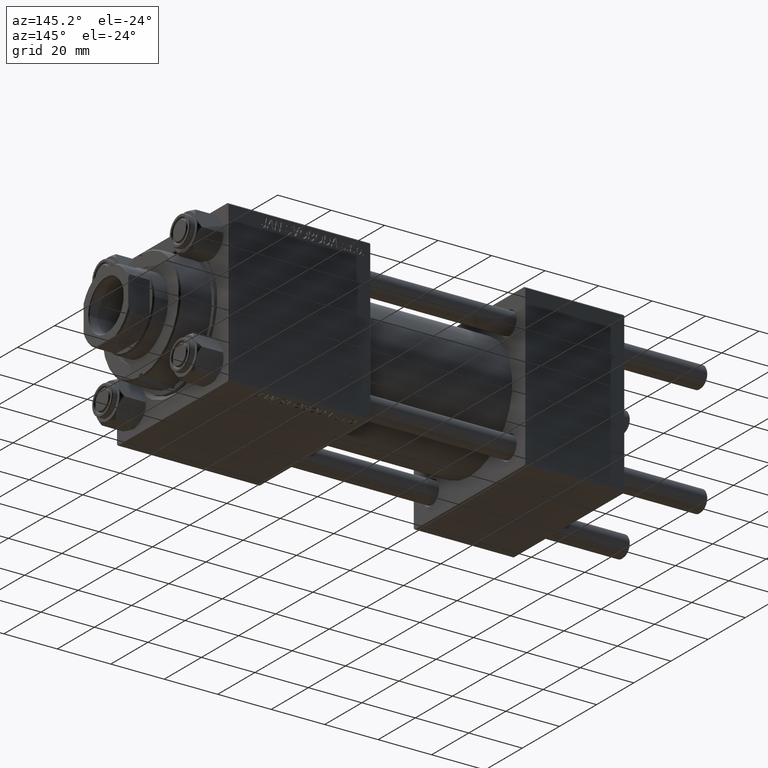
[diagram: clean part render]
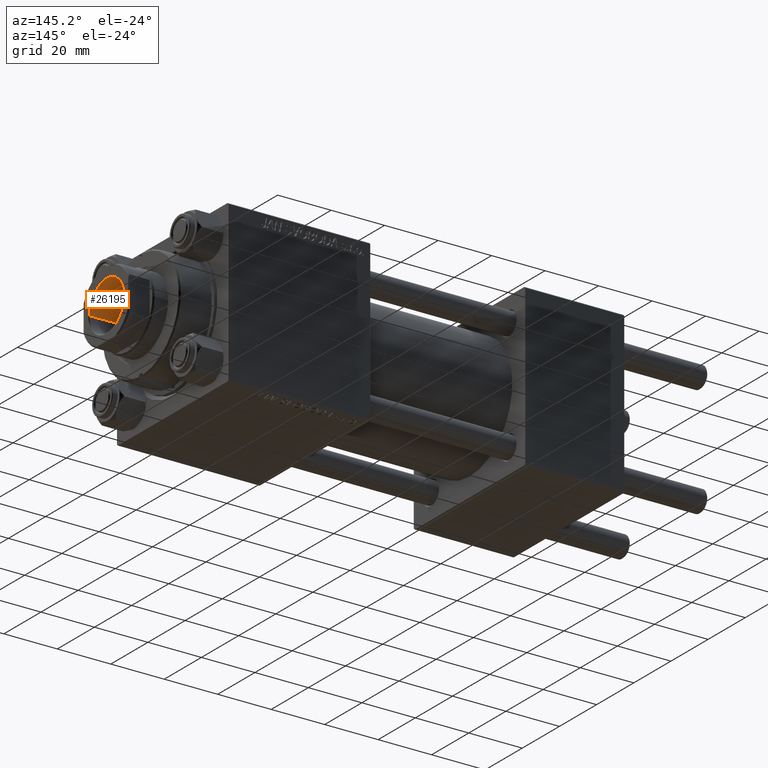
[diagram: same view with one face highlighted and labeled with its STEP entity id]
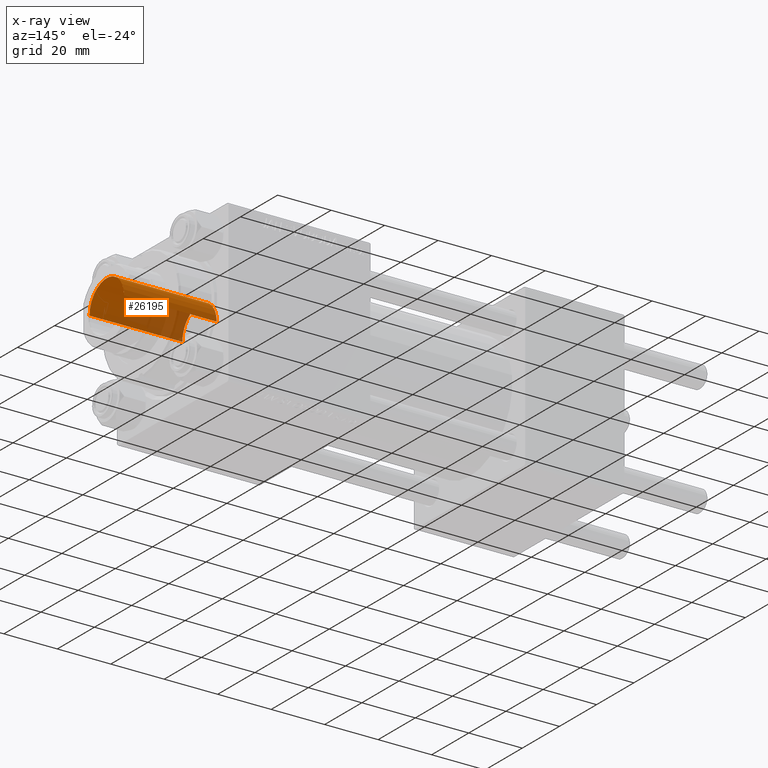
[diagram: x-ray of the same camera — body ghosted, the highlighted face saturated]
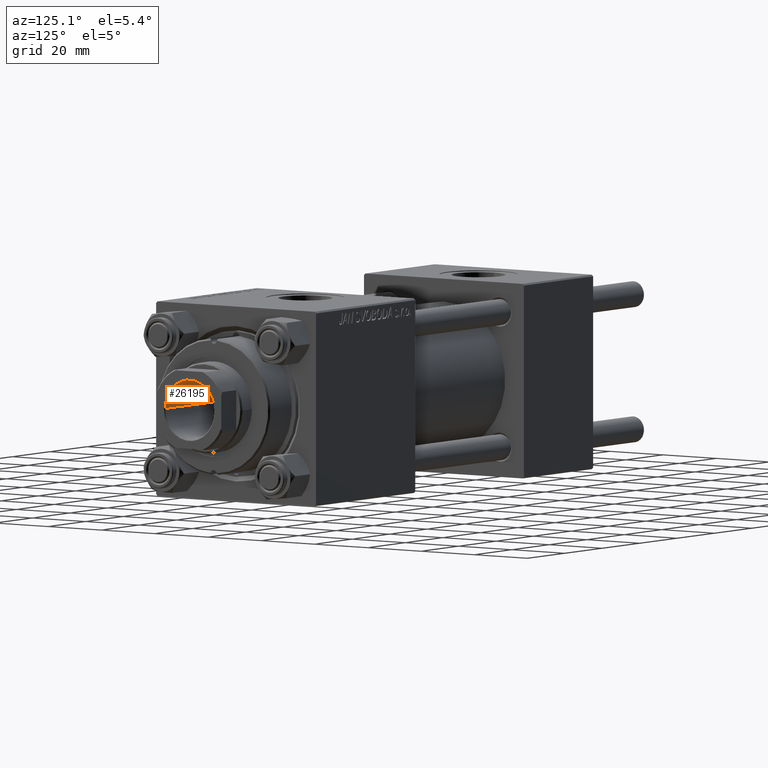
[diagram: same view with one face highlighted and labeled with its STEP entity id]
A machine part, auxiliary view. The second image highlights one B-rep face of the part: STEP entity #26195.
The next image is the same camera in x-ray: the body ghosted, the highlighted face saturated — about 28% of this face is hidden behind the body in this view.
A second angle (auxiliary view) of the same face is appended — the face is thin or edge-on in the first view.
In plain terms, the highlighted cylindrical surface (edge-blend (fillet) strip) has radius 9.25 mm, axis along (1, 0, -0).
Its self-contained STEP definition (entity closure, byte-faithful):
#2062 = DIRECTION ( 'NONE',  ( -0.000000000000000000, -0.000000000000000000, 1.000000000000000000 ) ) ;
#2477 = VERTEX_POINT ( 'NONE', #37431 ) ;
#4441 = ORIENTED_EDGE ( 'NONE', *, *, #32414, .T. ) ;
#8479 = VERTEX_POINT ( 'NONE', #21358 ) ;
#9361 = DIRECTION ( 'NONE',  ( 1.000000000000000000, 0.000000000000000000, 0.000000000000000000 ) ) ;
#9885 = DIRECTION ( 'NONE',  ( 1.000000000000000000, 0.000000000000000000, 0.000000000000000000 ) ) ;
#10829 = DIRECTION ( 'NONE',  ( 0.000000000000000000, 0.000000000000000000, 1.000000000000000000 ) ) ;
#11609 = EDGE_CURVE ( 'NONE', #47692, #8479, #28053, .T. ) ;
#12761 = ORIENTED_EDGE ( 'NONE', *, *, #31987, .T. ) ;
#16094 = LINE ( 'NONE', #38639, #28106 ) ;
#16719 = CARTESIAN_POINT ( 'NONE',  ( 0.000000000000000000, 0.000000000000000000, 136.0000000000000000 ) ) ;
#19162 = AXIS2_PLACEMENT_3D ( 'NONE', #44577, #22269, #9885 ) ;
#20760 = DIRECTION ( 'NONE',  ( -0.000000000000000000, -0.000000000000000000, 1.000000000000000000 ) ) ;
#21358 = CARTESIAN_POINT ( 'NONE',  ( 9.249999999999992895, 0.000000000000000000, 101.0000000000000000 ) ) ;
#22269 = DIRECTION ( 'NONE',  ( -0.000000000000000000, -0.000000000000000000, 1.000000000000000000 ) ) ;
#23941 = ORIENTED_EDGE ( 'NONE', *, *, #25496, .F. ) ;
#24559 = FACE_OUTER_BOUND ( 'NONE', #47506, .T. ) ;
#25131 = CARTESIAN_POINT ( 'NONE',  ( -9.249999999999994671, 1.132798289211300909E-15, 136.0000000000000000 ) ) ;
#25353 = VECTOR ( 'NONE', #2062, 1000.000000000000000 ) ;
#25496 = EDGE_CURVE ( 'NONE', #8479, #2477, #16094, .T. ) ;
#26195 = ADVANCED_FACE ( 'NONE', ( #24559 ), #32176, .F. ) ;
#26852 = VERTEX_POINT ( 'NONE', #44372 ) ;
#28053 = CIRCLE ( 'NONE', #19162, 9.249999999999992895 ) ;
#28106 = VECTOR ( 'NONE', #34354, 1000.000000000000000 ) ;
#28605 = AXIS2_PLACEMENT_3D ( 'NONE', #45503, #10829, #46255 ) ;
#30237 = CIRCLE ( 'NONE', #28605, 9.249999999999994671 ) ;
#31987 = EDGE_CURVE ( 'NONE', #47692, #26852, #40829, .T. ) ;
#32176 = CYLINDRICAL_SURFACE ( 'NONE', #47790, 9.249999999999994671 ) ;
#32414 = EDGE_CURVE ( 'NONE', #26852, #2477, #30237, .T. ) ;
#34354 = DIRECTION ( 'NONE',  ( -0.000000000000000000, -0.000000000000000000, 1.000000000000000000 ) ) ;
#36743 = ORIENTED_EDGE ( 'NONE', *, *, #11609, .F. ) ;
#37431 = CARTESIAN_POINT ( 'NONE',  ( 9.249999999999994671, 0.000000000000000000, 135.7000000000000455 ) ) ;
#38639 = CARTESIAN_POINT ( 'NONE',  ( 9.249999999999994671, 0.000000000000000000, 136.0000000000000000 ) ) ;
#40829 = LINE ( 'NONE', #25131, #25353 ) ;
#44372 = CARTESIAN_POINT ( 'NONE',  ( -9.249999999999994671, 1.132798289211300909E-15, 135.7000000000000455 ) ) ;
#44577 = CARTESIAN_POINT ( 'NONE',  ( 0.000000000000000000, 0.000000000000000000, 101.0000000000000000 ) ) ;
#45503 = CARTESIAN_POINT ( 'NONE',  ( 0.000000000000000000, 0.000000000000000000, 135.7000000000000455 ) ) ;
#46255 = DIRECTION ( 'NONE',  ( 1.000000000000000000, 0.000000000000000000, 0.000000000000000000 ) ) ;
#47506 = EDGE_LOOP ( 'NONE', ( #36743, #12761, #4441, #23941 ) ) ;
#47692 = VERTEX_POINT ( 'NONE', #50122 ) ;
#47790 = AXIS2_PLACEMENT_3D ( 'NONE', #16719, #20760, #9361 ) ;
#50122 = CARTESIAN_POINT ( 'NONE',  ( -9.249999999999992895, 1.132798289211300712E-15, 101.0000000000000000 ) ) ;